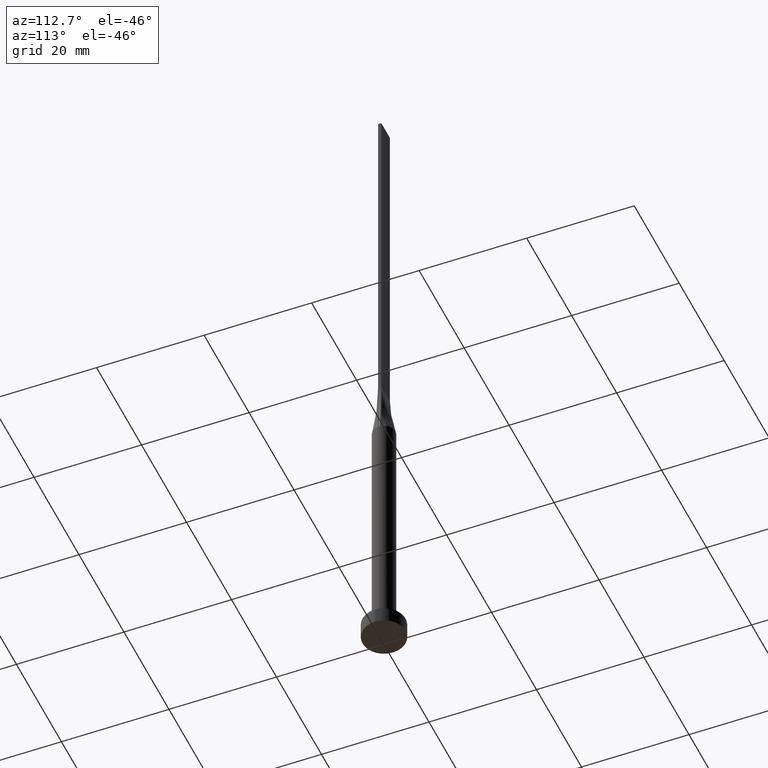
[diagram: clean part render]
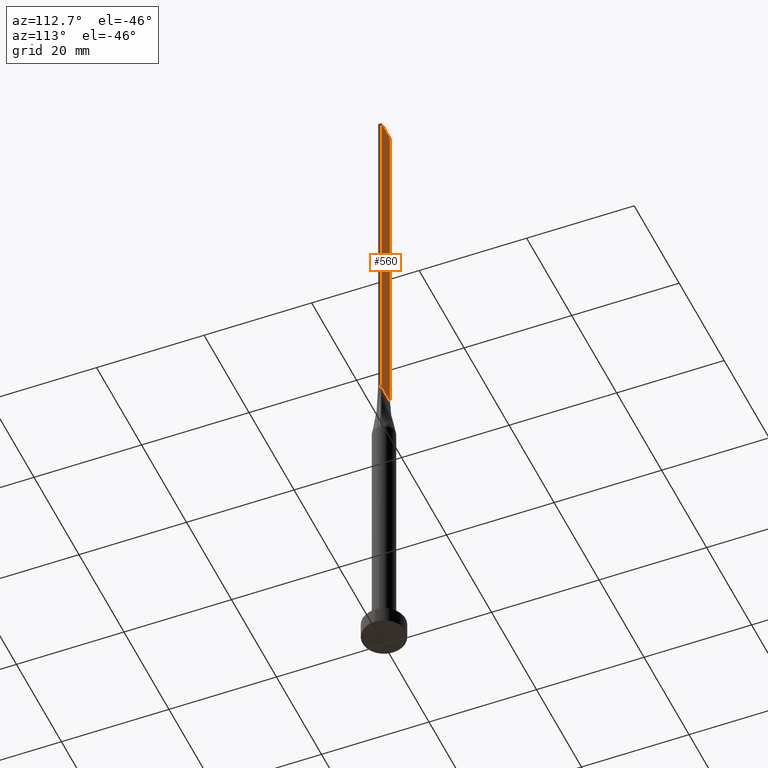
[diagram: same view with one face highlighted and labeled with its STEP entity id]
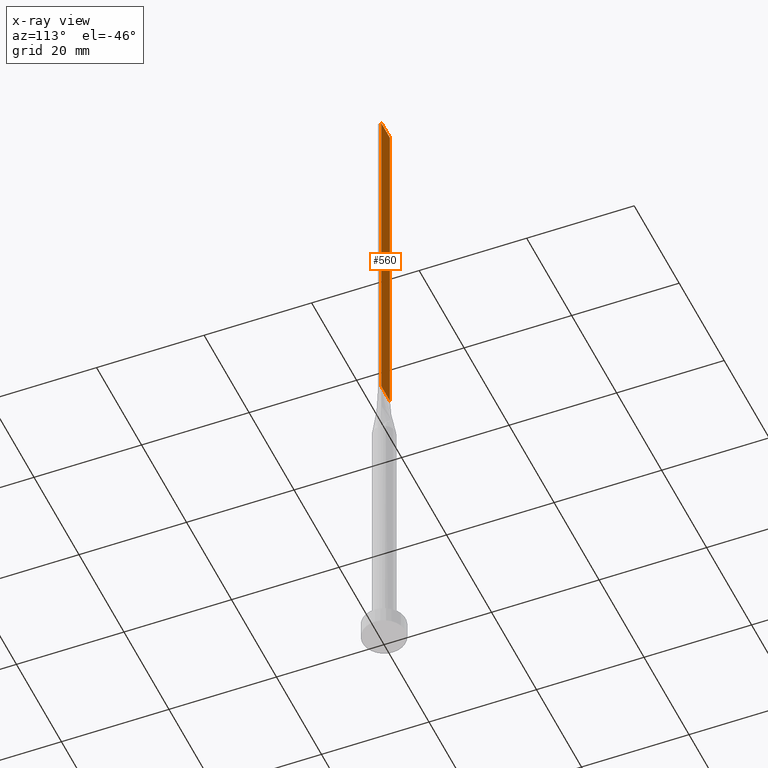
[diagram: x-ray of the same camera — body ghosted, the highlighted face saturated]
A machine part, auxiliary view. The second image highlights one B-rep face of the part: STEP entity #560.
The next image is the same camera in x-ray: the body ghosted, the highlighted face saturated — about 0% of this face is hidden behind the body in this view.
In plain terms, the highlighted planar face has unit normal (0, -1, 0).
Its self-contained STEP definition (entity closure, byte-faithful):
#29 = DIRECTION ( 'NONE',  ( -0.000000000000000000, -0.000000000000000000, -1.000000000000000000 ) ) ;
#37 = LINE ( 'NONE', #580, #402 ) ;
#51 = CARTESIAN_POINT ( 'NONE',  ( 1.899999999999999689, 0.3000000000000002109, 125.0000000000000000 ) ) ;
#70 = CARTESIAN_POINT ( 'NONE',  ( -1.899999999999999689, 0.3000000000000002109, 60.00000000000000711 ) ) ;
#105 = VERTEX_POINT ( 'NONE', #70 ) ;
#128 = CARTESIAN_POINT ( 'NONE',  ( 1.899999999999999689, 0.3000000000000002109, 60.00000000000000711 ) ) ;
#132 = DIRECTION ( 'NONE',  ( -0.000000000000000000, -0.000000000000000000, -1.000000000000000000 ) ) ;
#152 = EDGE_LOOP ( 'NONE', ( #559, #499, #320, #416 ) ) ;
#178 = EDGE_CURVE ( 'NONE', #514, #105, #488, .T. ) ;
#204 = CARTESIAN_POINT ( 'NONE',  ( 1.899999999999999689, 0.3000000000000002109, 125.0000000000000000 ) ) ;
#234 = EDGE_CURVE ( 'NONE', #528, #105, #37, .T. ) ;
#243 = VECTOR ( 'NONE', #29, 1000.000000000000000 ) ;
#253 = FACE_OUTER_BOUND ( 'NONE', #152, .T. ) ;
#266 = VERTEX_POINT ( 'NONE', #51 ) ;
#287 = PLANE ( 'NONE',  #579 ) ;
#297 = VECTOR ( 'NONE', #132, 1000.000000000000000 ) ;
#305 = DIRECTION ( 'NONE',  ( -1.000000000000000000, -0.000000000000000000, -0.000000000000000000 ) ) ;
#320 = ORIENTED_EDGE ( 'NONE', *, *, #407, .F. ) ;
#336 = LINE ( 'NONE', #204, #243 ) ;
#344 = DIRECTION ( 'NONE',  ( 0.000000000000000000, -0.000000000000000000, -1.000000000000000000 ) ) ;
#352 = CARTESIAN_POINT ( 'NONE',  ( -1.899999999999999689, 0.3000000000000002109, 125.0000000000000000 ) ) ;
#362 = VECTOR ( 'NONE', #565, 1000.000000000000000 ) ;
#376 = LINE ( 'NONE', #427, #362 ) ;
#388 = CARTESIAN_POINT ( 'NONE',  ( 1.899999999999999689, 0.3000000000000002109, 125.0000000000000000 ) ) ;
#399 = CARTESIAN_POINT ( 'NONE',  ( -1.899999999999999689, 0.3000000000000002109, 125.0000000000000000 ) ) ;
#402 = VECTOR ( 'NONE', #305, 1000.000000000000000 ) ;
#407 = EDGE_CURVE ( 'NONE', #266, #514, #376, .T. ) ;
#416 = ORIENTED_EDGE ( 'NONE', *, *, #547, .T. ) ;
#427 = CARTESIAN_POINT ( 'NONE',  ( 1.899999999999999689, 0.3000000000000002109, 125.0000000000000000 ) ) ;
#481 = DIRECTION ( 'NONE',  ( 0.000000000000000000, -1.000000000000000000, 0.000000000000000000 ) ) ;
#488 = LINE ( 'NONE', #399, #297 ) ;
#499 = ORIENTED_EDGE ( 'NONE', *, *, #178, .F. ) ;
#514 = VERTEX_POINT ( 'NONE', #352 ) ;
#528 = VERTEX_POINT ( 'NONE', #128 ) ;
#547 = EDGE_CURVE ( 'NONE', #266, #528, #336, .T. ) ;
#559 = ORIENTED_EDGE ( 'NONE', *, *, #234, .T. ) ;
#560 = ADVANCED_FACE ( 'NONE', ( #253 ), #287, .F. ) ;
#565 = DIRECTION ( 'NONE',  ( -1.000000000000000000, 0.000000000000000000, 0.000000000000000000 ) ) ;
#579 = AXIS2_PLACEMENT_3D ( 'NONE', #388, #481, #344 ) ;
#580 = CARTESIAN_POINT ( 'NONE',  ( -1.899999999999999689, 0.3000000000000002109, 60.00000000000000711 ) ) ;